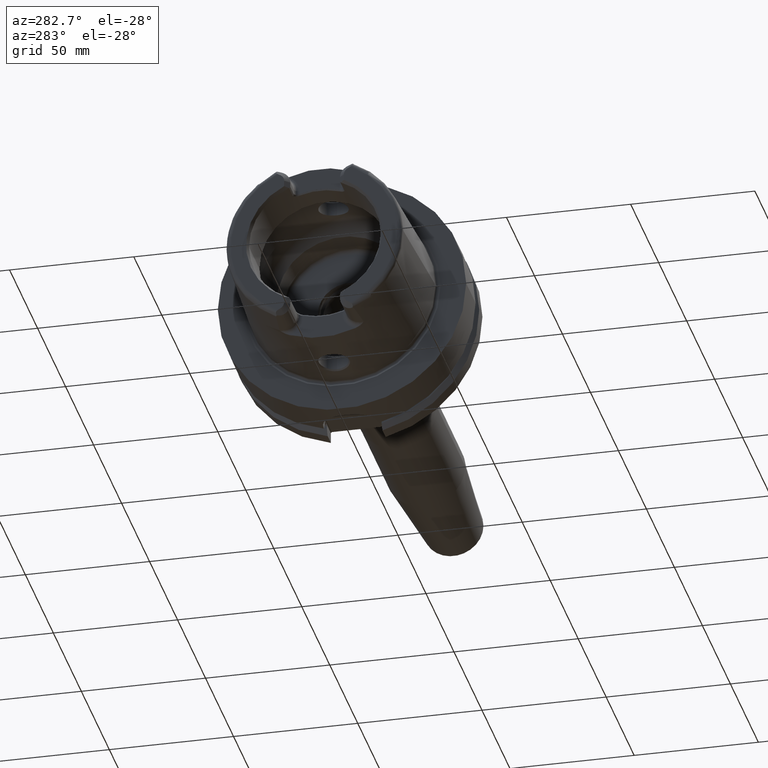
[diagram: clean part render]
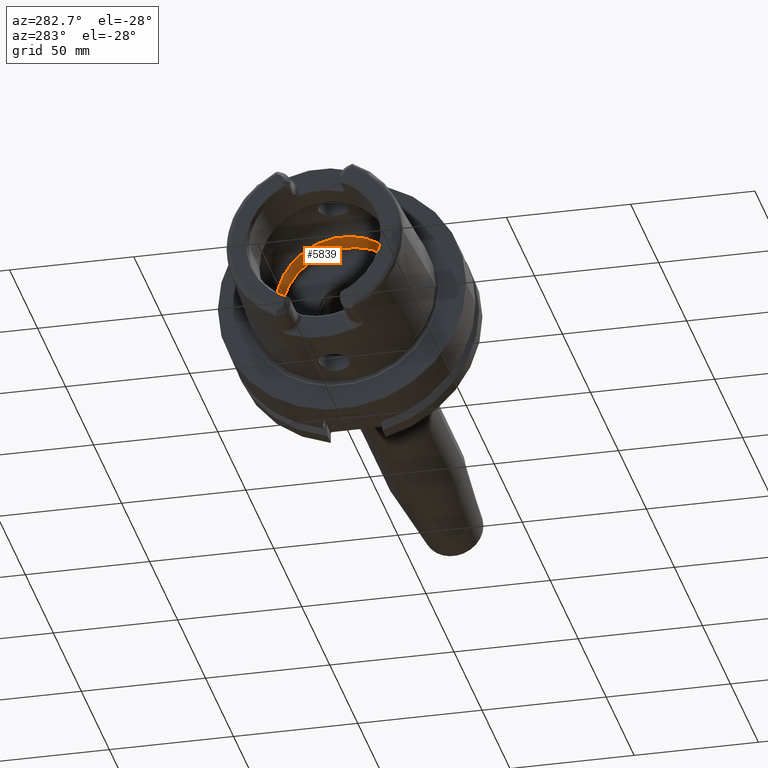
[diagram: same view with one face highlighted and labeled with its STEP entity id]
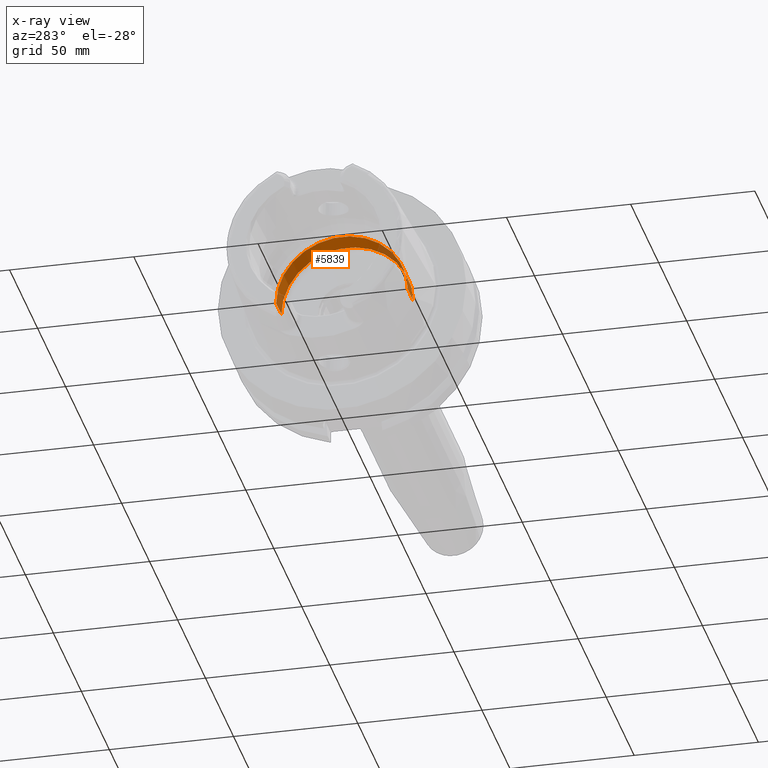
[diagram: x-ray of the same camera — body ghosted, the highlighted face saturated]
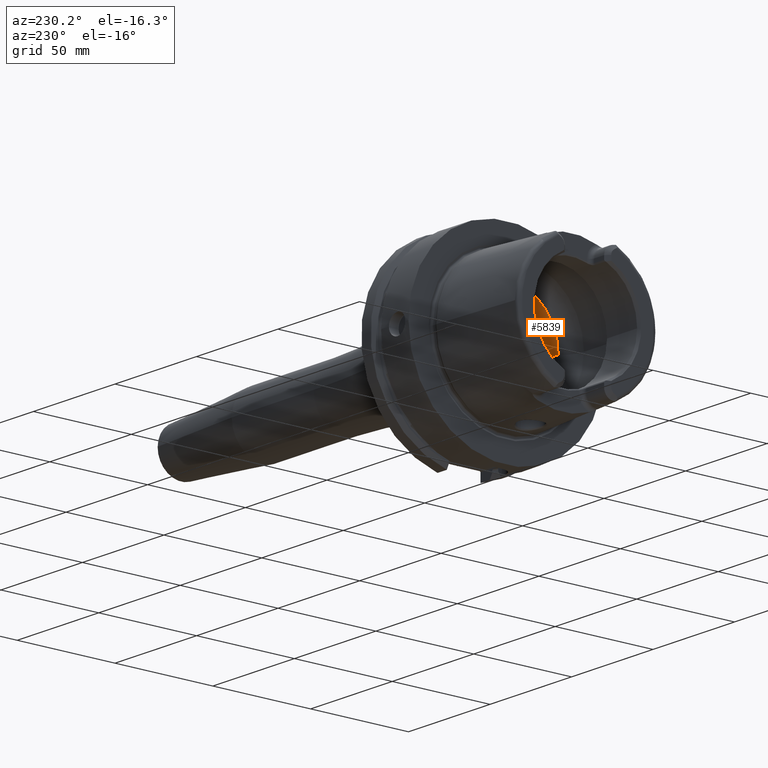
[diagram: same view with one face highlighted and labeled with its STEP entity id]
A machine part, auxiliary view. The second image highlights one B-rep face of the part: STEP entity #5839.
The next image is the same camera in x-ray: the body ghosted, the highlighted face saturated — about 19% of this face is hidden behind the body in this view.
A second angle (auxiliary view) of the same face is appended — the face is thin or edge-on in the first view.
In plain terms, the highlighted cylindrical surface (partial cylindrical patch) has radius 26.5 mm, axis along (1, 0, 0).
Its self-contained STEP definition (entity closure, byte-faithful):
#2100=CARTESIAN_POINT('',(-1.E-1,0.E0,0.E0));
#2101=DIRECTION('',(1.E0,0.E0,0.E0));
#2102=DIRECTION('',(0.E0,1.E0,0.E0));
#2103=AXIS2_PLACEMENT_3D('',#2100,#2101,#2102);
#2262=DIRECTION('',(-1.E0,0.E0,0.E0));
#2263=VECTOR('',#2262,9.4E0);
#2264=CARTESIAN_POINT('',(9.3E0,2.65E1,0.E0));
#2265=LINE('',#2264,#2263);
#2271=DIRECTION('',(-1.E0,0.E0,0.E0));
#2272=VECTOR('',#2271,9.4E0);
#2273=CARTESIAN_POINT('',(9.3E0,-2.65E1,0.E0));
#2274=LINE('',#2273,#2272);
#2275=CARTESIAN_POINT('',(9.3E0,0.E0,0.E0));
#2276=DIRECTION('',(1.E0,0.E0,0.E0));
#2277=DIRECTION('',(0.E0,1.E0,0.E0));
#2278=AXIS2_PLACEMENT_3D('',#2275,#2276,#2277);
#2746=CARTESIAN_POINT('',(9.3E0,2.65E1,0.E0));
#2748=VERTEX_POINT('',#2746);
#2750=CARTESIAN_POINT('',(9.3E0,-2.65E1,0.E0));
#2752=VERTEX_POINT('',#2750);
#2753=CARTESIAN_POINT('',(-1.E-1,2.65E1,0.E0));
#2754=VERTEX_POINT('',#2753);
#2765=CARTESIAN_POINT('',(-1.E-1,-2.65E1,0.E0));
#2766=VERTEX_POINT('',#2765);
#5827=CARTESIAN_POINT('',(-5.3125E1,0.E0,0.E0));
#5828=DIRECTION('',(1.E0,0.E0,0.E0));
#5829=DIRECTION('',(0.E0,-1.E0,0.E0));
#5830=AXIS2_PLACEMENT_3D('',#5827,#5828,#5829);
#5831=CYLINDRICAL_SURFACE('',#5830,2.65E1);
#5832=ORIENTED_EDGE('',*,*,#5817,.T.);
#5833=ORIENTED_EDGE('',*,*,#5751,.T.);
#5834=ORIENTED_EDGE('',*,*,#5821,.F.);
#5836=ORIENTED_EDGE('',*,*,#5835,.F.);
#5837=EDGE_LOOP('',(#5832,#5833,#5834,#5836));
#5838=FACE_OUTER_BOUND('',#5837,.F.);
#5839=ADVANCED_FACE('',(#5838),#5831,.F.);
#2104=CIRCLE('',#2103,2.65E1);
#2279=CIRCLE('',#2278,2.65E1);
#5751=EDGE_CURVE('',#2754,#2766,#2104,.T.);
#5817=EDGE_CURVE('',#2748,#2754,#2265,.T.);
#5821=EDGE_CURVE('',#2752,#2766,#2274,.T.);
#5835=EDGE_CURVE('',#2748,#2752,#2279,.T.);